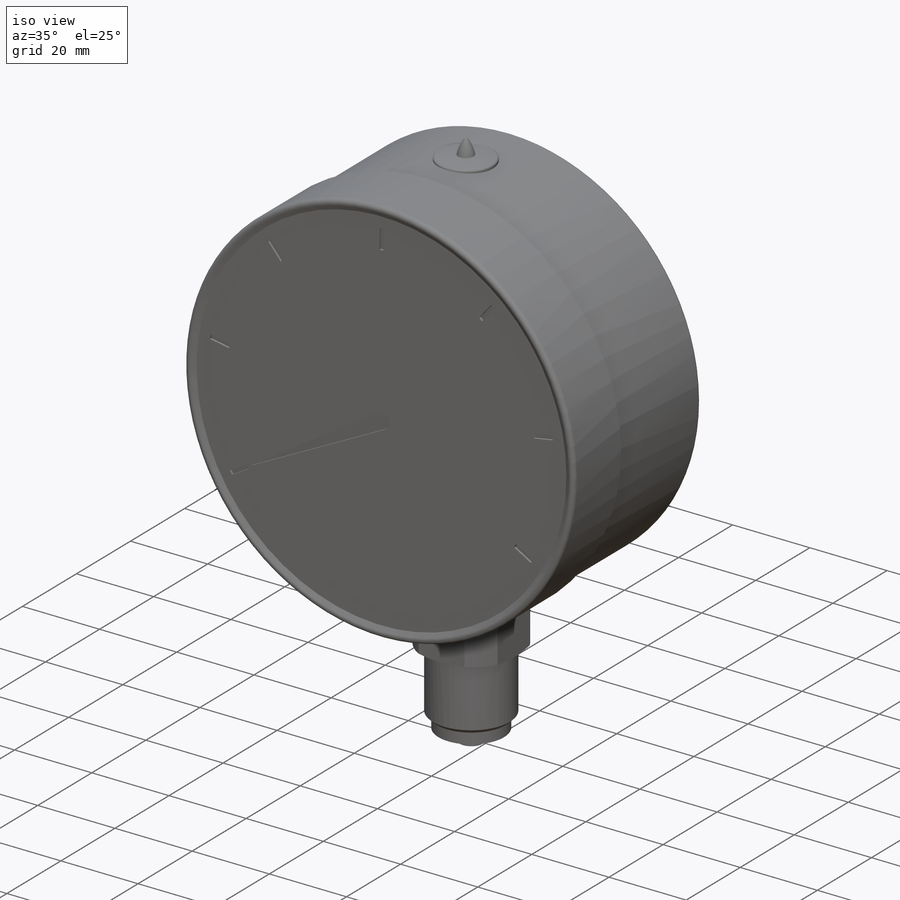
[diagram: iso view]
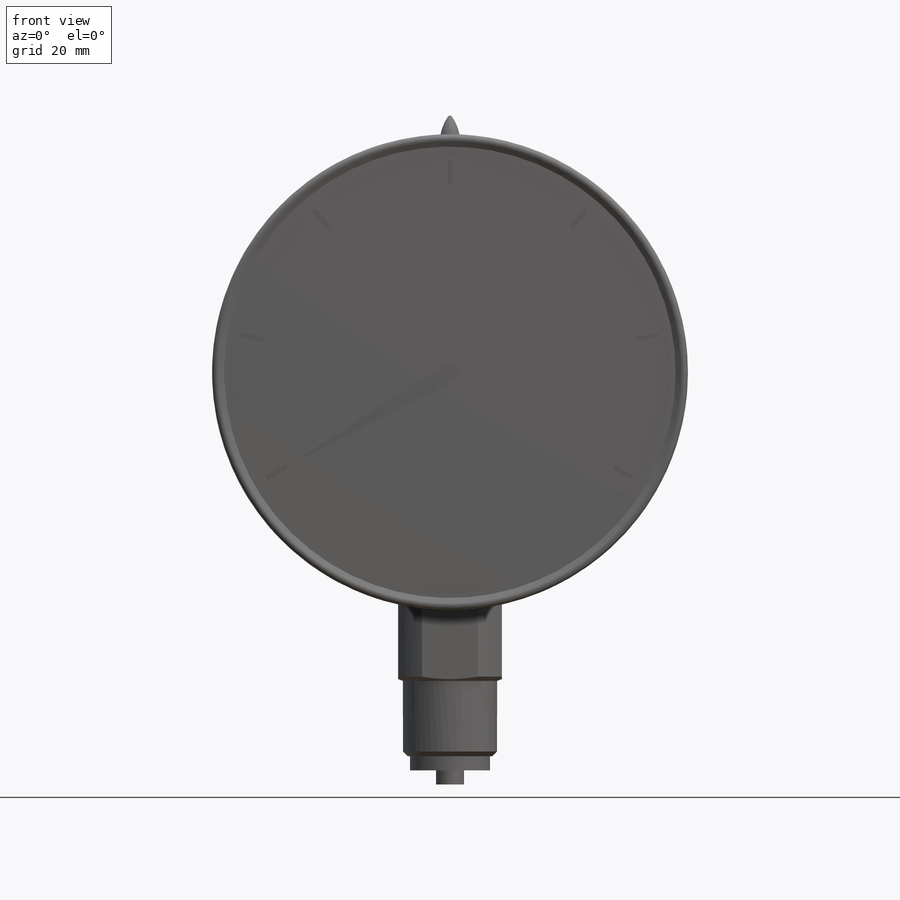
[diagram: front view]
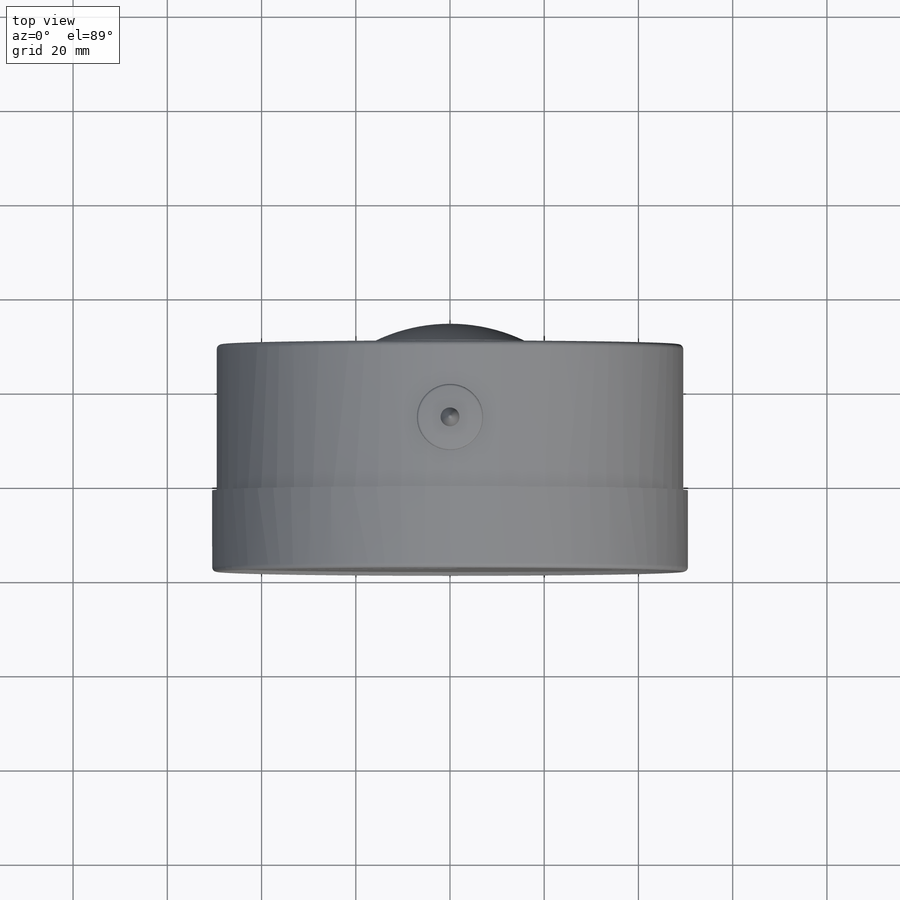
[diagram: top view]
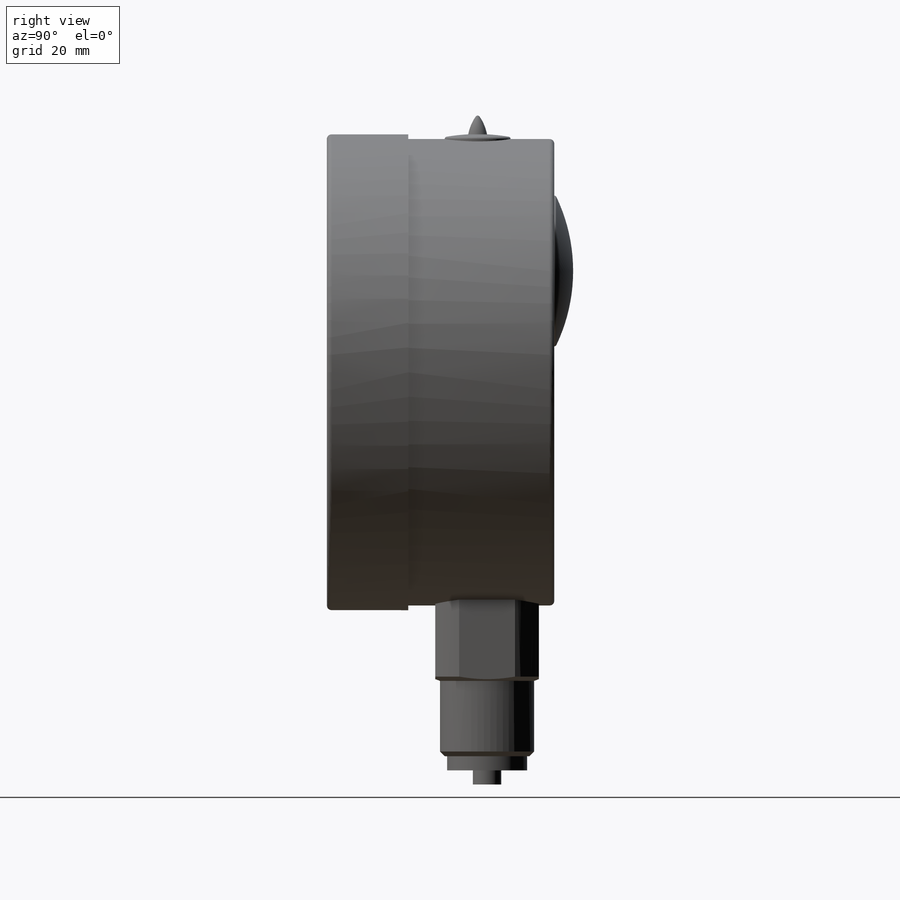
[diagram: right view]
SOLIDWORKS PART (.sldprt)
format: sldprt  version: not decoded by parser v0  size: 555,520 bytes
history: native  units: mm
features: sketch x7, plane x3, revolve x3, cut_extrude x2, cut_revolve x2, material x1, fillet x1, pattern_circular x1, extrude x1, chamfer x1 + 1 further entry (+8 scaffold rows collapsed)
feature tree (31):
  scaffold x8  (default folders/planes/origin — collapsed)
  material  "Materiál <není určen>"
  "Těla ploch"
  plane  "Horní"
  plane  "Přední"
  plane  "Pravá"
  sketch  "Skica1"  dims[c1.D1=5.8mm c1.D2=101.0mm c1.D3=80.0mm c1.D4=~16.036582mm c1.D5=181.0mm c1.D6=~15.065686mm c2.D6=45.0deg c2.D7=20.0mm c2.D8=1.5mm c2.D9=1.5mm c3.D7=~2.12132mm c4.D7=30.0deg c4.D9=49.0mm c4.D10=20.8mm c4.D11=33.0mm c4.D4=99.0mm c4.D12=18.0mm c4.D3=2.7mm c4.D5=33.0mm c4.D6=16.2mm c5.D11=2.3mm c6.D11=45.0deg c6.D13=2.7mm]
  revolve  "Rotovat1"  Angle=360deg
  fillet  "Zaoblit1"  Radius=1mm
  sketch  "Skica2"  dims[c1.D1=~17.612399mm c2.D1=120.0deg c2.D2=1.0mm c2.D3=5.0mm c2.D4=~45.002778mm c3.D1=45.0mm c3.D5=~40.003125mm]
  cut_extrude  "Odebrat vysunutím1"  Depth=0.5mm
  pattern_circular  "Kruhové pole1"  Count=9 Angle=360deg
  sketch  "Skica3"  dims[D1=2.0mm D2=39.0mm]
  cut_extrude  "Odebrat vysunutím2"  Depth=0.5mm
  sketch  "Skica4"  dims[c1.D1=23.0mm c1.D2=22.0mm c2.D1=22.0mm c2.D2=25.0mm c3.D1=23.0mm c3.D2=22.0mm c3.D3=22.0mm]
  extrude  "Přidat vysunutím1"  Depth=87.5mm
  sketch  "Skica5"  dims[c1.D1=3.0mm c1.D2=6.0mm c1.D3=23.0mm c1.D4=20.0mm c1.D5=20.0mm c1.D6=21.0mm c2.D6=15.0deg c2.D1=22.0mm c2.D3=3.0mm c2.D5=20.0mm c3.D6=21.0mm c4.D6=20.0deg c4.D5=20.0mm c4.D7=17.0mm c4.D8=3.0mm c4.D9=17.0mm c4.D10=20.0mm c4.D11=9.0mm c4.D12=~21.36857mm c5.D12=20.0deg c5.D13=3.0mm c5.D14=20.0mm c5.D15=20.0mm c5.D16=20.0mm c5.D17=90.0deg c6.D17=~32.232051mm c6.D18=~30.732051mm c6.D5=20.0mm c6.D10=25.0mm c6.D9=30.0mm]
  cut_revolve  "Odebrat rotací1"  Angle=360deg
  chamfer  "Zkosení1"  Distance=1mm Angle=45deg
  sketch  "Skica7"  dims[D5=0.5mm D6=0.5mm D7=10.0mm D10=~14.188883mm D1=32.0mm D2=5.0mm D3=14.0mm D4=5.0mm D8=4.0mm D9=1.0mm]
  revolve  "Rotovat2"  Angle=360deg
  cut_revolve  "Rozdělit2"  [1 undecoded]
  sketch  "Skica9"  dims[D4=0.5mm D5=50.0mm D1=4.0mm D2=12.0mm D3=32.0mm]
  revolve  "Rotovat3"  Angle=360deg
decode coverage: 17 of 18 modeling features carry decoded parameters; 1 rows unclassified (native names shown)
note: ~ marks probable driven/reference dimensions
note: 1 parameter value undecoded
note: suppression state not decoded; provenance and decode notes live in map.json
